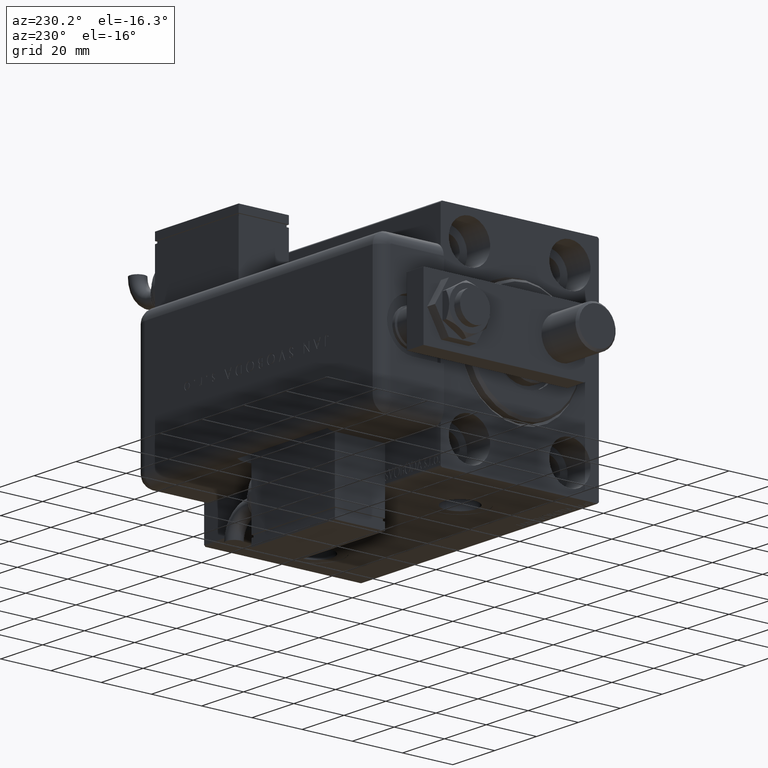
[diagram: clean part render]
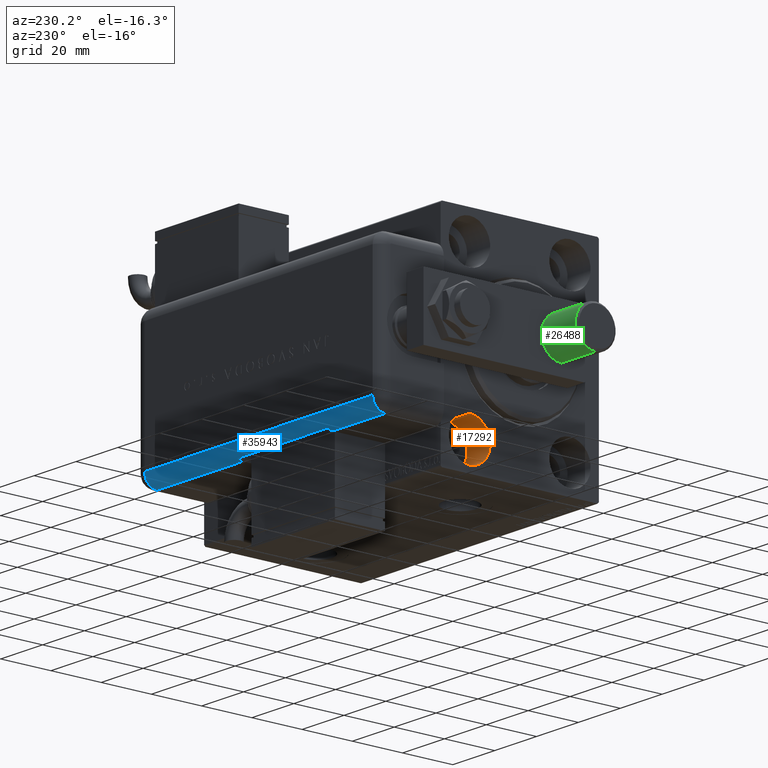
[diagram: same view with three faces highlighted in distinct colors, each labeled with its STEP entity id]
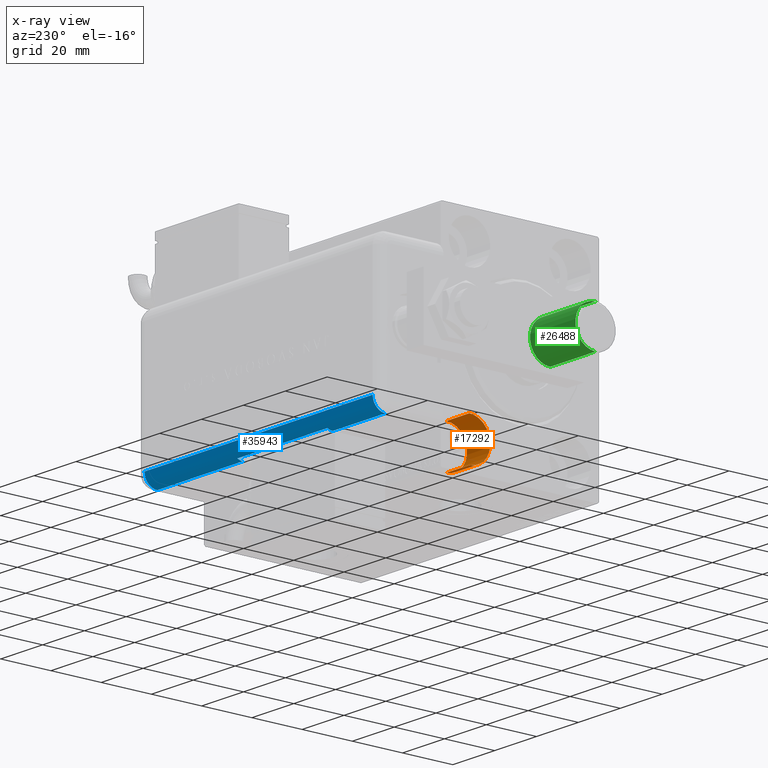
[diagram: x-ray of the same camera — body ghosted, the three highlighted faces saturated]
A machine part, auxiliary view with three faces highlighted in distinct colors.
The next image is the same camera in x-ray (body ghosted, the three faces saturated) — at least one of them is partly hidden behind the body in this view.
Their STEP definitions:

[orange] entity #17292 — the highlighted cylindrical surface (edge-blend (fillet) strip) has radius 8.25 mm, axis along (-1, -0, -0).
#2770 = EDGE_CURVE ( 'NONE', #28338, #7884, #8894, .T. ) ;
#3057 = CARTESIAN_POINT ( 'NONE',  ( 0.000000000000000000, 19.99999999999999645, -31.49999999999999289 ) ) ;
#3454 = LINE ( 'NONE', #44864, #51082 ) ;
#3702 = EDGE_CURVE ( 'NONE', #20237, #48799, #59516, .T. ) ;
#6744 = DIRECTION ( 'NONE',  ( -1.000000000000000000, -0.000000000000000000, -0.000000000000000000 ) ) ;
#7884 = VERTEX_POINT ( 'NONE', #37064 ) ;
#8894 = CIRCLE ( 'NONE', #42910, 8.250000000000000000 ) ;
#9088 = LINE ( 'NONE', #45020, #26379 ) ;
#10977 = DIRECTION ( 'NONE',  ( -1.000000000000000000, 0.000000000000000000, 0.000000000000000000 ) ) ;
#12522 = ORIENTED_EDGE ( 'NONE', *, *, #3702, .T. ) ;
#16225 = EDGE_CURVE ( 'NONE', #28338, #20237, #3454, .T. ) ;
#17292 = ADVANCED_FACE ( 'NONE', ( #47875 ), #39334, .F. ) ;
#20237 = VERTEX_POINT ( 'NONE', #56028 ) ;
#24691 = DIRECTION ( 'NONE',  ( 0.000000000000000000, 0.000000000000000000, 1.000000000000000000 ) ) ;
#26259 = CARTESIAN_POINT ( 'NONE',  ( 0.000000000000000000, 19.99999999999999645, -23.24999999999999289 ) ) ;
#26379 = VECTOR ( 'NONE', #40157, 1000.000000000000000 ) ;
#26671 = ORIENTED_EDGE ( 'NONE', *, *, #16225, .T. ) ;
#26903 = DIRECTION ( 'NONE',  ( -1.000000000000000000, -0.000000000000000000, -0.000000000000000000 ) ) ;
#28338 = VERTEX_POINT ( 'NONE', #52527 ) ;
#30176 = CARTESIAN_POINT ( 'NONE',  ( 11.00000000000000000, 19.99999999999999645, -31.49999999999999289 ) ) ;
#34132 = CARTESIAN_POINT ( 'NONE',  ( 11.00000000000000000, 19.99999999999999645, -31.49999999999999289 ) ) ;
#35824 = ORIENTED_EDGE ( 'NONE', *, *, #50165, .F. ) ;
#37064 = CARTESIAN_POINT ( 'NONE',  ( 11.00000000000000000, 19.99999999999999645, -23.24999999999999289 ) ) ;
#39098 = EDGE_LOOP ( 'NONE', ( #56695, #26671, #12522, #35824 ) ) ;
#39334 = CYLINDRICAL_SURFACE ( 'NONE', #56932, 8.250000000000000000 ) ;
#40157 = DIRECTION ( 'NONE',  ( -1.000000000000000000, -0.000000000000000000, -0.000000000000000000 ) ) ;
#41145 = DIRECTION ( 'NONE',  ( -1.000000000000000000, 0.000000000000000000, 0.000000000000000000 ) ) ;
#42910 = AXIS2_PLACEMENT_3D ( 'NONE', #34132, #10977, #24691 ) ;
#44864 = CARTESIAN_POINT ( 'NONE',  ( 11.00000000000000000, 19.99999999999999645, -39.74999999999999289 ) ) ;
#45020 = CARTESIAN_POINT ( 'NONE',  ( 11.00000000000000000, 19.99999999999999645, -23.24999999999999289 ) ) ;
#45995 = DIRECTION ( 'NONE',  ( 0.000000000000000000, 0.000000000000000000, 1.000000000000000000 ) ) ;
#46877 = AXIS2_PLACEMENT_3D ( 'NONE', #3057, #41145, #45995 ) ;
#47875 = FACE_OUTER_BOUND ( 'NONE', #39098, .T. ) ;
#48799 = VERTEX_POINT ( 'NONE', #26259 ) ;
#50165 = EDGE_CURVE ( 'NONE', #7884, #48799, #9088, .T. ) ;
#51082 = VECTOR ( 'NONE', #26903, 1000.000000000000000 ) ;
#52527 = CARTESIAN_POINT ( 'NONE',  ( 11.00000000000000000, 19.99999999999999645, -39.74999999999999289 ) ) ;
#53316 = DIRECTION ( 'NONE',  ( 0.000000000000000000, 0.000000000000000000, 1.000000000000000000 ) ) ;
#56028 = CARTESIAN_POINT ( 'NONE',  ( 0.000000000000000000, 19.99999999999999645, -39.74999999999999289 ) ) ;
#56695 = ORIENTED_EDGE ( 'NONE', *, *, #2770, .F. ) ;
#56932 = AXIS2_PLACEMENT_3D ( 'NONE', #30176, #6744, #53316 ) ;
#59516 = CIRCLE ( 'NONE', #46877, 8.250000000000000000 ) ;

[blue] entity #35943 — the highlighted cylindrical surface (edge-blend (fillet) strip) has radius 5 mm, axis along (1, -0, -0).
#1401 = VERTEX_POINT ( 'NONE', #37883 ) ;
#1780 = ORIENTED_EDGE ( 'NONE', *, *, #18684, .F. ) ;
#1953 = CARTESIAN_POINT ( 'NONE',  ( -28.99999999999999645, 20.79999999999998650, 114.0000000000000000 ) ) ;
#2237 = VERTEX_POINT ( 'NONE', #39137 ) ;
#3181 = EDGE_CURVE ( 'NONE', #30372, #3901, #8770, .T. ) ;
#3623 = ORIENTED_EDGE ( 'NONE', *, *, #14504, .F. ) ;
#3652 = VECTOR ( 'NONE', #11991, 1000.000000000000000 ) ;
#3901 = VERTEX_POINT ( 'NONE', #36868 ) ;
#4070 = VECTOR ( 'NONE', #27330, 1000.000000000000000 ) ;
#4143 = AXIS2_PLACEMENT_3D ( 'NONE', #50219, #59034, #40178 ) ;
#6359 = CARTESIAN_POINT ( 'NONE',  ( -28.48998886412872622, 22.99999999999998934, 114.0000000000000000 ) ) ;
#8770 = LINE ( 'NONE', #17912, #4070 ) ;
#8989 = DIRECTION ( 'NONE',  ( -0.000000000000000000, -0.000000000000000000, 1.000000000000000000 ) ) ;
#10892 = DIRECTION ( 'NONE',  ( -0.000000000000000000, -0.000000000000000000, 1.000000000000000000 ) ) ;
#11733 = CARTESIAN_POINT ( 'NONE',  ( -28.99999999999999645, 20.79999999999998650, 46.00000000000001421 ) ) ;
#11991 = DIRECTION ( 'NONE',  ( 0.000000000000000000, 0.000000000000000000, -1.000000000000000000 ) ) ;
#14504 = EDGE_CURVE ( 'NONE', #2237, #47572, #41457, .T. ) ;
#15283 = CARTESIAN_POINT ( 'NONE',  ( -24.00000000000000000, 20.79999999999998650, 114.0000000000000000 ) ) ;
#16097 = VERTEX_POINT ( 'NONE', #19653 ) ;
#16171 = CYLINDRICAL_SURFACE ( 'NONE', #33544, 5.000000000000000888 ) ;
#17912 = CARTESIAN_POINT ( 'NONE',  ( -28.99999999999999645, 20.79999999999998650, 114.0000000000000000 ) ) ;
#18684 = EDGE_CURVE ( 'NONE', #56650, #30372, #58920, .T. ) ;
#19043 = CARTESIAN_POINT ( 'NONE',  ( -24.00000000000000000, 25.79999999999998295, 114.0000000000000000 ) ) ;
#19653 = CARTESIAN_POINT ( 'NONE',  ( -28.99999999999999645, 20.79999999999998650, 89.00000000000001421 ) ) ;
#21764 = EDGE_CURVE ( 'NONE', #47572, #16097, #35141, .T. ) ;
#22983 = AXIS2_PLACEMENT_3D ( 'NONE', #42611, #10892, #57184 ) ;
#24189 = DIRECTION ( 'NONE',  ( -0.000000000000000000, -0.000000000000000000, 1.000000000000000000 ) ) ;
#25003 = DIRECTION ( 'NONE',  ( 0.000000000000000000, 0.000000000000000000, -1.000000000000000000 ) ) ;
#25300 = FACE_OUTER_BOUND ( 'NONE', #47576, .T. ) ;
#25407 = AXIS2_PLACEMENT_3D ( 'NONE', #50570, #31697, #27127 ) ;
#27127 = DIRECTION ( 'NONE',  ( -1.000000000000000000, 0.000000000000000000, 0.000000000000000000 ) ) ;
#27330 = DIRECTION ( 'NONE',  ( 0.000000000000000000, 0.000000000000000000, -1.000000000000000000 ) ) ;
#29189 = VECTOR ( 'NONE', #24189, 1000.000000000000000 ) ;
#29489 = DIRECTION ( 'NONE',  ( 0.000000000000000000, 0.000000000000000000, -1.000000000000000000 ) ) ;
#29511 = ORIENTED_EDGE ( 'NONE', *, *, #21764, .F. ) ;
#30356 = CIRCLE ( 'NONE', #4143, 5.000000000000000888 ) ;
#30372 = VERTEX_POINT ( 'NONE', #11733 ) ;
#31697 = DIRECTION ( 'NONE',  ( -0.000000000000000000, -0.000000000000000000, 1.000000000000000000 ) ) ;
#33544 = AXIS2_PLACEMENT_3D ( 'NONE', #15283, #25003, #44192 ) ;
#35141 = LINE ( 'NONE', #1953, #3652 ) ;
#35386 = ORIENTED_EDGE ( 'NONE', *, *, #51228, .T. ) ;
#35943 = ADVANCED_FACE ( 'NONE', ( #25300 ), #16171, .T. ) ;
#36088 = VECTOR ( 'NONE', #29489, 1000.000000000000000 ) ;
#36868 = CARTESIAN_POINT ( 'NONE',  ( -28.99999999999999645, 20.79999999999998650, 5.000000000000004441 ) ) ;
#37456 = CARTESIAN_POINT ( 'NONE',  ( -28.48998886412872622, 22.99999999999998934, 89.00000000000001421 ) ) ;
#37883 = CARTESIAN_POINT ( 'NONE',  ( -24.00000000000000000, 25.79999999999998295, 5.000000000000004441 ) ) ;
#39137 = CARTESIAN_POINT ( 'NONE',  ( -24.00000000000000000, 25.79999999999998295, 114.0000000000000000 ) ) ;
#40178 = DIRECTION ( 'NONE',  ( 1.000000000000000000, 0.000000000000000000, 0.000000000000000000 ) ) ;
#41457 = CIRCLE ( 'NONE', #22983, 5.000000000000000888 ) ;
#42611 = CARTESIAN_POINT ( 'NONE',  ( -24.00000000000000000, 20.79999999999998650, 114.0000000000000000 ) ) ;
#43538 = ORIENTED_EDGE ( 'NONE', *, *, #3181, .F. ) ;
#43575 = ORIENTED_EDGE ( 'NONE', *, *, #50003, .F. ) ;
#43895 = CIRCLE ( 'NONE', #25407, 5.000000000000000888 ) ;
#44192 = DIRECTION ( 'NONE',  ( -1.000000000000000000, 0.000000000000000000, 0.000000000000000000 ) ) ;
#46127 = DIRECTION ( 'NONE',  ( -1.000000000000000000, -3.469446951953613400E-15, 0.000000000000000000 ) ) ;
#47572 = VERTEX_POINT ( 'NONE', #51705 ) ;
#47576 = EDGE_LOOP ( 'NONE', ( #1780, #43575, #53191, #29511, #3623, #55506, #35386, #43538 ) ) ;
#48635 = EDGE_CURVE ( 'NONE', #1401, #2237, #55865, .T. ) ;
#50003 = EDGE_CURVE ( 'NONE', #55575, #56650, #53829, .T. ) ;
#50219 = CARTESIAN_POINT ( 'NONE',  ( -24.00000000000000000, 20.79999999999998650, 89.00000000000001421 ) ) ;
#50570 = CARTESIAN_POINT ( 'NONE',  ( -24.00000000000000000, 20.79999999999998650, 5.000000000000004441 ) ) ;
#50692 = CARTESIAN_POINT ( 'NONE',  ( -24.00000000000000000, 20.79999999999998650, 46.00000000000001421 ) ) ;
#51228 = EDGE_CURVE ( 'NONE', #1401, #3901, #43895, .T. ) ;
#51705 = CARTESIAN_POINT ( 'NONE',  ( -28.99999999999999645, 20.79999999999998650, 114.0000000000000000 ) ) ;
#53191 = ORIENTED_EDGE ( 'NONE', *, *, #53394, .F. ) ;
#53394 = EDGE_CURVE ( 'NONE', #16097, #55575, #30356, .T. ) ;
#53829 = LINE ( 'NONE', #6359, #36088 ) ;
#53868 = CARTESIAN_POINT ( 'NONE',  ( -28.48998886412872622, 22.99999999999998934, 46.00000000000001421 ) ) ;
#55074 = AXIS2_PLACEMENT_3D ( 'NONE', #50692, #8989, #46127 ) ;
#55506 = ORIENTED_EDGE ( 'NONE', *, *, #48635, .F. ) ;
#55575 = VERTEX_POINT ( 'NONE', #37456 ) ;
#55865 = LINE ( 'NONE', #19043, #29189 ) ;
#56650 = VERTEX_POINT ( 'NONE', #53868 ) ;
#57184 = DIRECTION ( 'NONE',  ( -1.000000000000000000, 0.000000000000000000, 0.000000000000000000 ) ) ;
#58920 = CIRCLE ( 'NONE', #55074, 5.000000000000000888 ) ;
#59034 = DIRECTION ( 'NONE',  ( 0.000000000000000000, -0.000000000000000000, -1.000000000000000000 ) ) ;

[green] entity #26488 — the highlighted cylindrical surface (edge-blend (fillet) strip) has radius 8 mm, axis along (-1, -0, 0).
#302 = AXIS2_PLACEMENT_3D ( 'NONE', #24356, #42935, #15228 ) ;
#5987 = LINE ( 'NONE', #6594, #41046 ) ;
#6594 = CARTESIAN_POINT ( 'NONE',  ( 8.000000000000000000, 9.797174393178823685E-16, 22.50000000000000000 ) ) ;
#7012 = EDGE_CURVE ( 'NONE', #39634, #26907, #33398, .T. ) ;
#8174 = VECTOR ( 'NONE', #25501, 1000.000000000000000 ) ;
#9446 = CARTESIAN_POINT ( 'NONE',  ( -8.000000000000000000, 0.000000000000000000, 0.8000000000000055955 ) ) ;
#12570 = ORIENTED_EDGE ( 'NONE', *, *, #7012, .F. ) ;
#12865 = DIRECTION ( 'NONE',  ( 1.000000000000000000, 0.000000000000000000, 0.000000000000000000 ) ) ;
#15228 = DIRECTION ( 'NONE',  ( 1.000000000000000000, 0.000000000000000000, 0.000000000000000000 ) ) ;
#16412 = ORIENTED_EDGE ( 'NONE', *, *, #51688, .T. ) ;
#20888 = ORIENTED_EDGE ( 'NONE', *, *, #29637, .F. ) ;
#20955 = LINE ( 'NONE', #52037, #8174 ) ;
#24277 = DIRECTION ( 'NONE',  ( -0.000000000000000000, -0.000000000000000000, -1.000000000000000000 ) ) ;
#24356 = CARTESIAN_POINT ( 'NONE',  ( 0.000000000000000000, 0.000000000000000000, 22.50000000000000000 ) ) ;
#25501 = DIRECTION ( 'NONE',  ( -0.000000000000000000, -0.000000000000000000, -1.000000000000000000 ) ) ;
#25646 = CARTESIAN_POINT ( 'NONE',  ( 0.000000000000000000, 0.000000000000000000, 0.8000000000000055955 ) ) ;
#26302 = CARTESIAN_POINT ( 'NONE',  ( -8.000000000000000000, 0.000000000000000000, 22.50000000000000000 ) ) ;
#26488 = ADVANCED_FACE ( 'NONE', ( #38888 ), #43753, .T. ) ;
#26907 = VERTEX_POINT ( 'NONE', #26302 ) ;
#29637 = EDGE_CURVE ( 'NONE', #26907, #58773, #20955, .T. ) ;
#33398 = CIRCLE ( 'NONE', #302, 8.000000000000000000 ) ;
#35226 = DIRECTION ( 'NONE',  ( -1.000000000000000000, 0.000000000000000000, 0.000000000000000000 ) ) ;
#37210 = AXIS2_PLACEMENT_3D ( 'NONE', #25646, #45132, #12865 ) ;
#37777 = VERTEX_POINT ( 'NONE', #51297 ) ;
#38888 = FACE_OUTER_BOUND ( 'NONE', #53000, .T. ) ;
#39634 = VERTEX_POINT ( 'NONE', #41225 ) ;
#41046 = VECTOR ( 'NONE', #24277, 1000.000000000000000 ) ;
#41141 = CIRCLE ( 'NONE', #37210, 8.000000000000000000 ) ;
#41225 = CARTESIAN_POINT ( 'NONE',  ( 8.000000000000000000, 9.797174393178823685E-16, 22.50000000000000000 ) ) ;
#42935 = DIRECTION ( 'NONE',  ( 0.000000000000000000, 0.000000000000000000, 1.000000000000000000 ) ) ;
#43753 = CYLINDRICAL_SURFACE ( 'NONE', #59385, 8.000000000000000000 ) ;
#45132 = DIRECTION ( 'NONE',  ( -0.000000000000000000, -0.000000000000000000, 1.000000000000000000 ) ) ;
#48609 = CARTESIAN_POINT ( 'NONE',  ( 0.000000000000000000, 0.000000000000000000, 22.50000000000000000 ) ) ;
#48913 = DIRECTION ( 'NONE',  ( -0.000000000000000000, -0.000000000000000000, -1.000000000000000000 ) ) ;
#51297 = CARTESIAN_POINT ( 'NONE',  ( 8.000000000000000000, 9.797174393178823685E-16, 0.8000000000000055955 ) ) ;
#51688 = EDGE_CURVE ( 'NONE', #39634, #37777, #5987, .T. ) ;
#52037 = CARTESIAN_POINT ( 'NONE',  ( -8.000000000000000000, 0.000000000000000000, 22.50000000000000000 ) ) ;
#53000 = EDGE_LOOP ( 'NONE', ( #12570, #16412, #55614, #20888 ) ) ;
#53917 = EDGE_CURVE ( 'NONE', #37777, #58773, #41141, .T. ) ;
#55614 = ORIENTED_EDGE ( 'NONE', *, *, #53917, .T. ) ;
#58773 = VERTEX_POINT ( 'NONE', #9446 ) ;
#59385 = AXIS2_PLACEMENT_3D ( 'NONE', #48609, #48913, #35226 ) ;